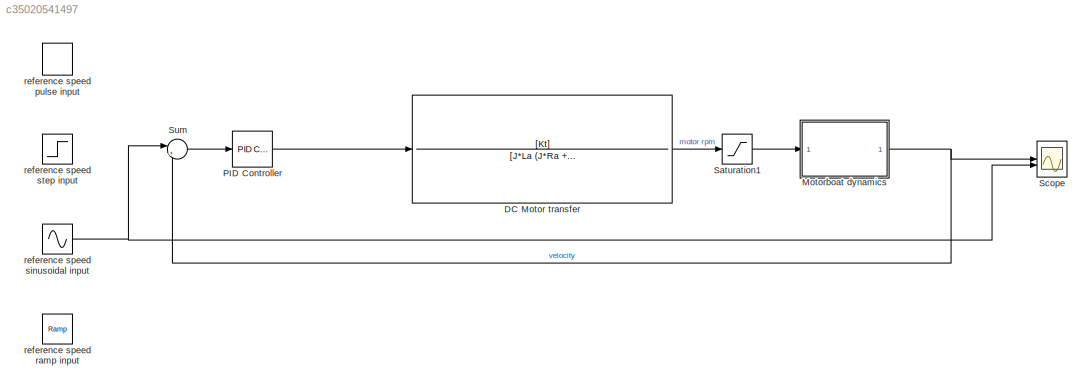
MODEL slx_c35020541497
KIND model
CONFIG AbsTol = auto
CONFIG EnableMultiTasking = off
CONFIG FixedStep = auto
CONFIG MaxStep = auto
CONFIG MinStep = auto
CONFIG RelTol = 1e-3
CONFIG SampleTimeConstraint = Unconstrained
CONFIG SolverName = VariableStepAuto
CONFIG StartTime = 0.0
CONFIG StopTime = 100
BLOCK [TransferFcn] DC Motor transfer
  Denominator = [J*La (J*Ra + B*La) (B*Ra + Kb*Kt)]
  Numerator = [Kt]
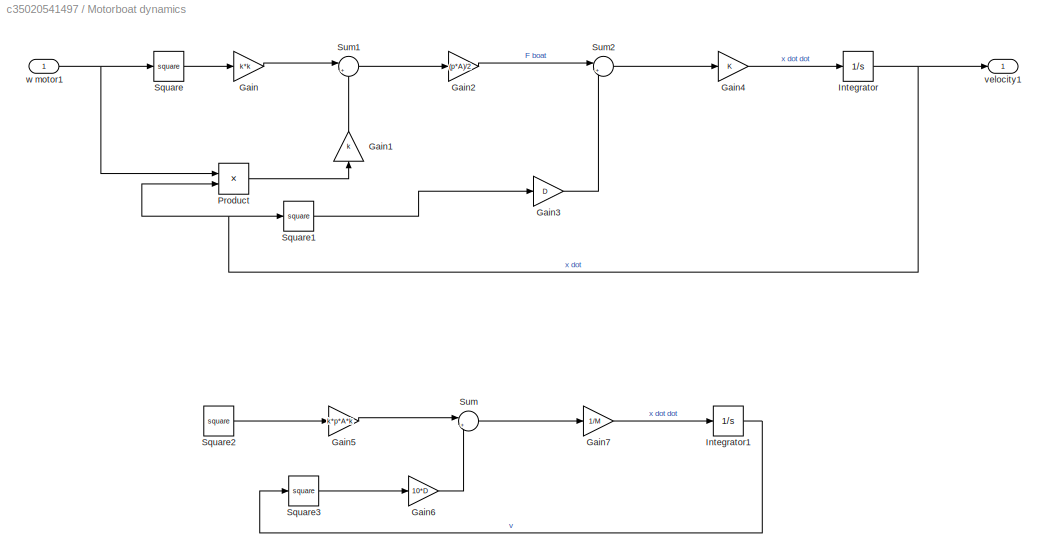
BLOCK [SubSystem] Motorboat dynamics
BLOCK [Gain] Motorboat dynamics/Gain
  Gain = k*k
BLOCK [Gain] Motorboat dynamics/Gain1
  Gain = k
  NameLocation = right
BLOCK [Gain] Motorboat dynamics/Gain2
  Gain = (p*A)/2
BLOCK [Gain] Motorboat dynamics/Gain3
  Gain = D
BLOCK [Gain] Motorboat dynamics/Gain4
BLOCK [Gain] Motorboat dynamics/Gain5
  Gain = k*p*A*k
BLOCK [Gain] Motorboat dynamics/Gain6
  Gain = 10*D
BLOCK [Gain] Motorboat dynamics/Gain7
  Gain = 1/M
BLOCK [Integrator] Motorboat dynamics/Integrator
BLOCK [Integrator] Motorboat dynamics/Integrator1
BLOCK [Product] Motorboat dynamics/Product
BLOCK [Math] Motorboat dynamics/Square
  Operator = square
BLOCK [Math] Motorboat dynamics/Square1
  Operator = square
BLOCK [Math] Motorboat dynamics/Square2
  Operator = square
BLOCK [Math] Motorboat dynamics/Square3
  Operator = square
BLOCK [Sum] Motorboat dynamics/Sum
  Inputs = |+-
BLOCK [Sum] Motorboat dynamics/Sum1
  Inputs = |++
BLOCK [Sum] Motorboat dynamics/Sum2
  Inputs = |+-
BLOCK [Outport] Motorboat dynamics/velocity1
BLOCK [Inport] Motorboat dynamics/w motor1
BLOCK [Reference] PID Controller  REF=slpidlib/PID Controller
  LibrarySourceBlock = simulink/Continuous/PID Controller
  SourceBlock = slpidlib/PID Controller
  SourceType = PID 1dof
BLOCK [Saturate] Saturation1
  LowerLimit = 0
  UpperLimit = 314
BLOCK [Scope] Scope
  Floating = off
  NumInputPorts = 2
  ScopeSpecificationString = Simulink.scopes.TimeScopeBlockCfg('CurrentConfiguration', extmgr.ConfigurationSet(extmgr.Configuration('Core','General UI',true),extmgr.Configuration('Core','Source UI',true),extmgr.Configuration('Sources','WiredSimulink',true),extmgr.Configuration('Visuals','Time Domain',true,'SerializedDisplays',{struct('MinYLimReal','-1.25','MaxYLimReal','1.25','YLabelReal','','MinYLimMag','0.00000','MaxYLimMag...<+1512ch>
BLOCK [Sum] Sum
  Inputs = |+-
BLOCK [DiscretePulseGenerator] reference speed pulse input
  Period = 100
  PulseType = Time based
BLOCK [Reference] reference speed ramp input  REF=simulink/Sources/Ramp
  SourceBlock = simulink/Sources/Ramp
  SourceType = Ramp
BLOCK [Sin] reference speed sinusoidal input
  Frequency = 0.1
  SampleTime = 0
BLOCK [Step] reference speed step input
  After = 100
  SampleTime = 0
LINE DC Motor transfer:1 -> Saturation1:1
LINE Motorboat dynamics/Gain1:1 -> Motorboat dynamics/Sum1:2
LINE Motorboat dynamics/Gain2:1 -> Motorboat dynamics/Sum2:1
LINE Motorboat dynamics/Gain3:1 -> Motorboat dynamics/Sum2:2
LINE Motorboat dynamics/Gain4:1 -> Motorboat dynamics/Integrator:1
LINE Motorboat dynamics/Gain5:1 -> Motorboat dynamics/Sum:1
LINE Motorboat dynamics/Gain6:1 -> Motorboat dynamics/Sum:2
LINE Motorboat dynamics/Gain7:1 -> Motorboat dynamics/Integrator1:1
LINE Motorboat dynamics/Gain:1 -> Motorboat dynamics/Sum1:1
LINE Motorboat dynamics/Integrator1:1 -> Motorboat dynamics/Square3:1
NET Motorboat dynamics/Integrator:1 -> Motorboat dynamics/Product:2, Motorboat dynamics/Square1:1, Motorboat dynamics/velocity1:1
LINE Motorboat dynamics/Product:1 -> Motorboat dynamics/Gain1:1
LINE Motorboat dynamics/Square1:1 -> Motorboat dynamics/Gain3:1
LINE Motorboat dynamics/Square2:1 -> Motorboat dynamics/Gain5:1
LINE Motorboat dynamics/Square3:1 -> Motorboat dynamics/Gain6:1
LINE Motorboat dynamics/Square:1 -> Motorboat dynamics/Gain:1
LINE Motorboat dynamics/Sum1:1 -> Motorboat dynamics/Gain2:1
LINE Motorboat dynamics/Sum2:1 -> Motorboat dynamics/Gain4:1
LINE Motorboat dynamics/Sum:1 -> Motorboat dynamics/Gain7:1
NET Motorboat dynamics/w motor1:1 -> Motorboat dynamics/Product:1, Motorboat dynamics/Square:1
NET Motorboat dynamics:1 -> Scope:1, Sum:2
LINE PID Controller:1 -> DC Motor transfer:1
LINE Saturation1:1 -> Motorboat dynamics:1
LINE Sum:1 -> PID Controller:1
NET reference speed sinusoidal input:1 -> Scope:2, Sum:1
note: NET lines group one-source signal fan-out (src -> all destinations, sorted); 1:1 wires keep LINE
